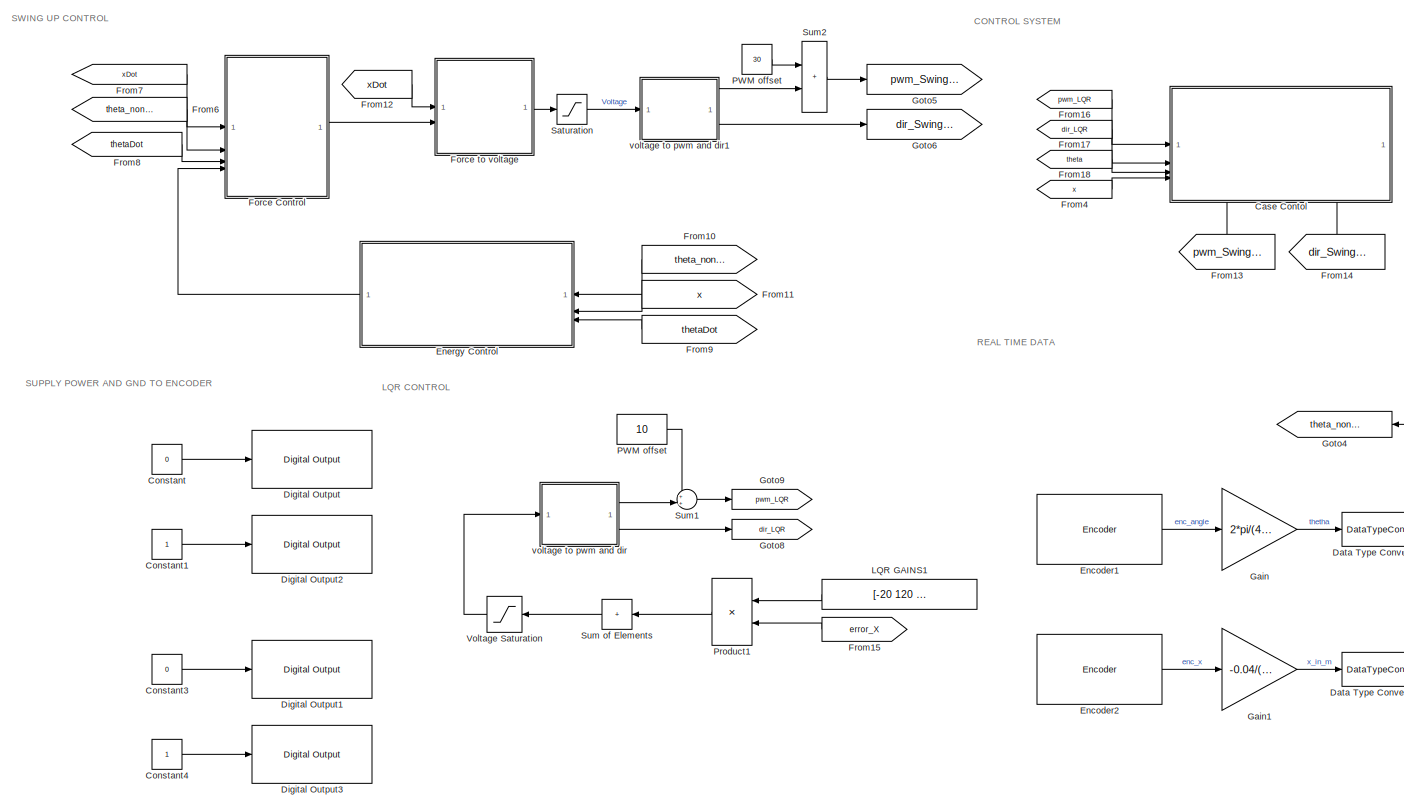
[diagram: root canvas - part 1/2, most of the canvas]
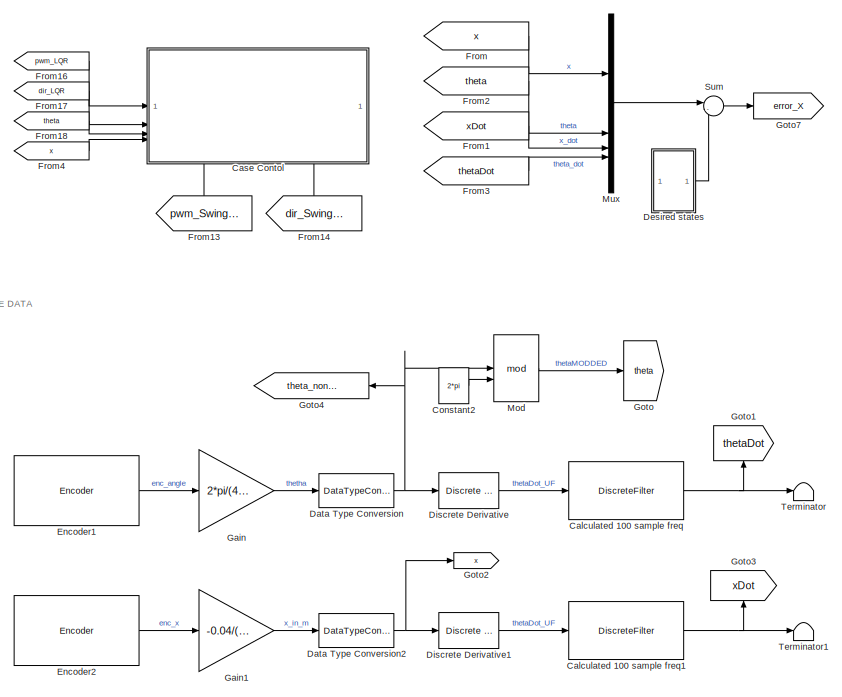
[diagram: root canvas - part 2/2, right side, full height]
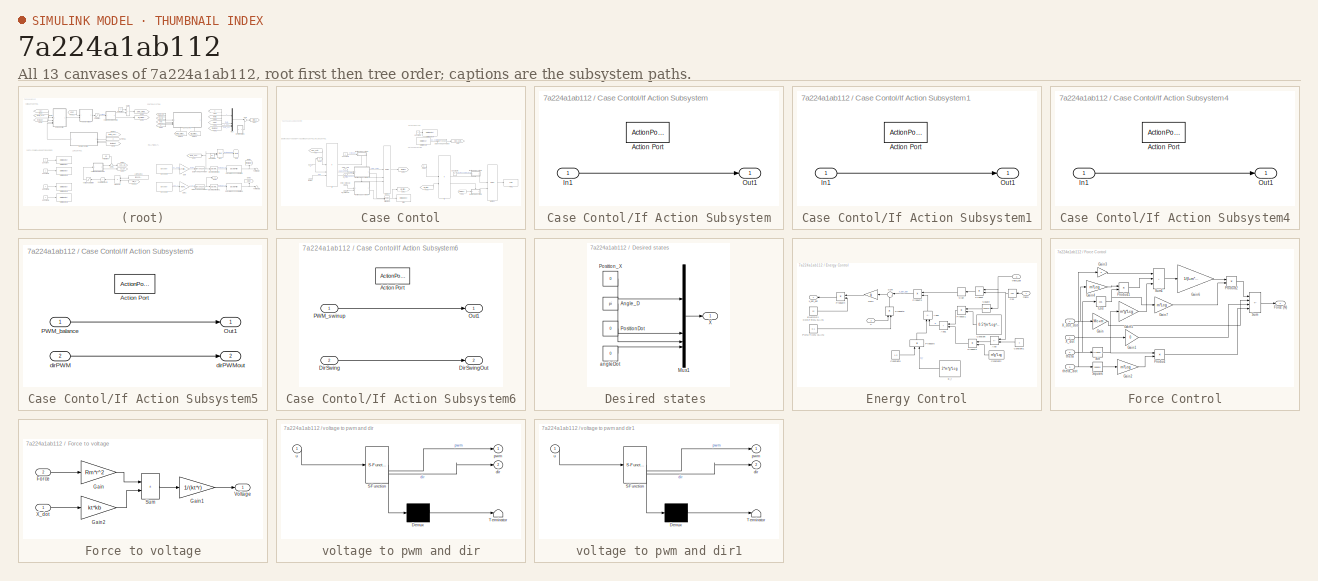
[diagram: thumbnail index - all 13 canvases of the model, root first then tree order]
MODEL slx_7a224a1ab112
KIND model
CONFIG AbsTol = auto
CONFIG EnableMultiTasking = on
CONFIG FixedStep = auto
CONFIG MaxStep = auto
CONFIG MinStep = auto
CONFIG RelTol = 1e-3
CONFIG SampleTimeConstraint = Unconstrained
CONFIG SolverName = ode45
CONFIG StartTime = 0.0
CONFIG StopTime = 10.0
WORKSPACE source: MATLAB code (in-file)
WORKSPACE Mc = 0.540 + 0.048  (= 0.588)
WORKSPACE l = 0.49
WORKSPACE Lcg = l/2  (= 0.245)
WORKSPACE m = 0.022
WORKSPACE g = 9.81
WORKSPACE Rm = 1.3
WORKSPACE kb = 0.02
WORKSPACE kt = 0.02
WORKSPACE r = 0.04/(2*pi)  (= 0.00636619772368)
WORKSPACE c = 5
WORKSPACE b = 0.00001  (= 1e-05)
WORKSPACE I = 0.00007  (= 7e-05)
WORKSPACE offset = 15
WORKSPACE highThetaTreshold = pi+ pi*offset/180  (= 3.40339204139)
WORKSPACE lowThetaTreshold = pi- pi*offset/180  (= 2.87979326579)
WORKSPACE xMAX = 0.25
WORKSPACE xMIN = -0.25
BLOCK [DiscreteFilter] Calculated 100 sample freq
  Denominator = [1 -0.9391]
  InputPortMap = u0
  Numerator = [0.03047 0.03047]
  SampleTime = 0.01
BLOCK [DiscreteFilter] Calculated 100 sample freq1
  Denominator = [1 -0.9391]
  InputPortMap = u0
  Numerator = [0.03047 0.03047]
  SampleTime = 0.01
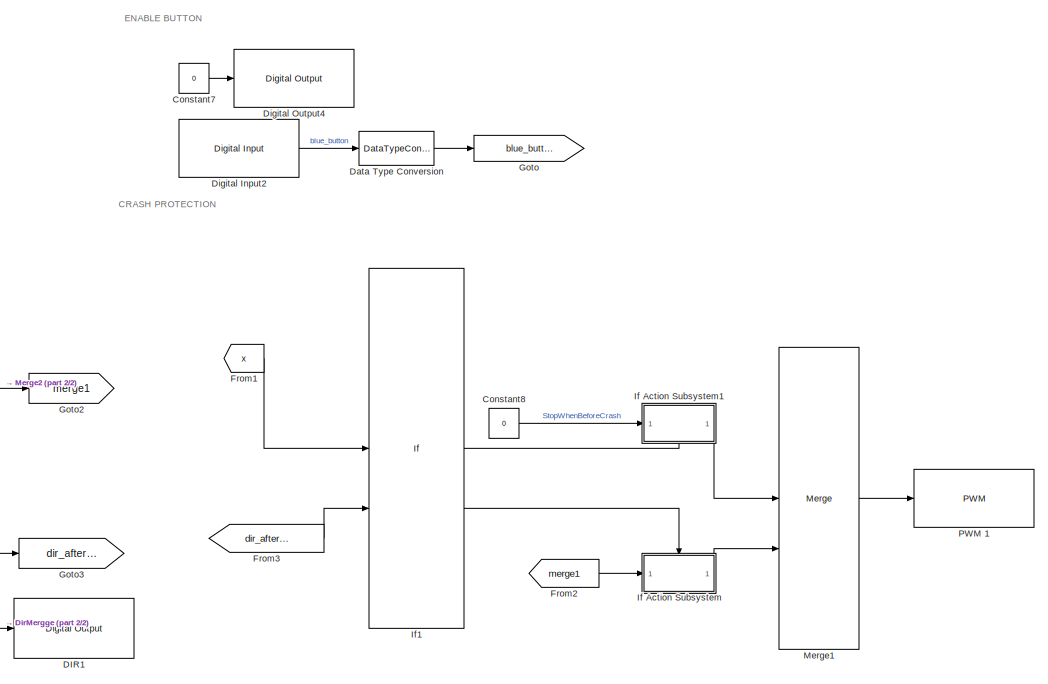
[diagram: Case Contol - part 1/2, right side, full height]
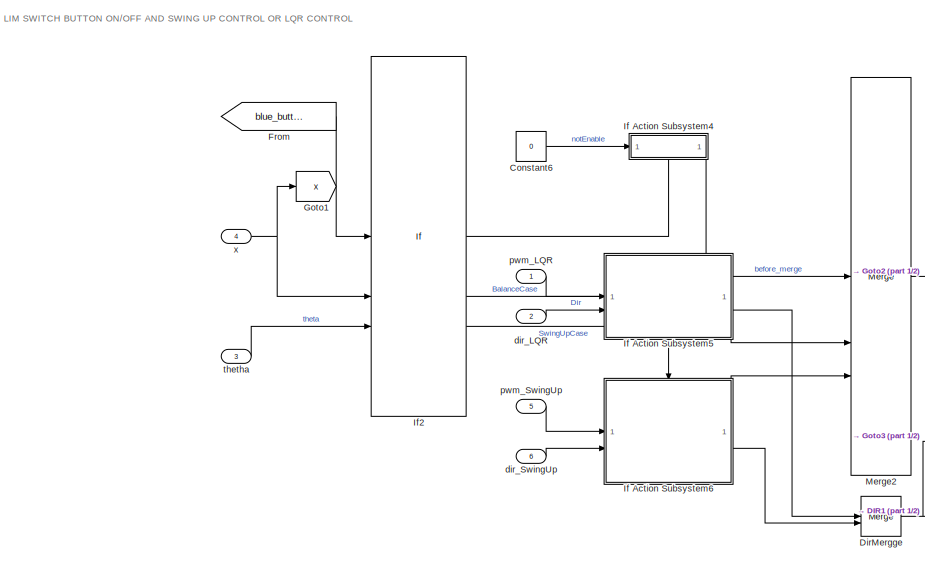
[diagram: Case Contol - part 2/2, left side, full height]
BLOCK [SubSystem] Case Contol
  PortSchema = {"entries":[{"content":{"sides":[{"content":{"connectorIds":["In1","In2","In3","In4"]},"type":"ConnectorPlacement.EquallySpacedRectSide","uuid":"b9c187f4-b904-4d2f-9cde-60dd328b1521"},{"content":{"connectorIds":[],"side":"RIGHT"},"type":"ConnectorPlacement.EquallySpacedRectSide","uuid":"bc2320ec-c90b-418d-8662-363a4a51a6b8"},{"content":{"connectorIds":[],"side":"TOP"},"type":"ConnectorPlacement.Eq...<+407ch>
BLOCK [Constant] Case Contol/Constant6
  Value = 0
BLOCK [Constant] Case Contol/Constant7
  Value = 0
BLOCK [Constant] Case Contol/Constant8
  Value = 0
BLOCK [Reference] Case Contol/DIR1  REF=arduinolib/Digital Output
  SourceBlock = arduinolib/Digital Output
  SourceType = Arduino Digital Output
BLOCK [DataTypeConversion] Case Contol/Data Type Conversion
  OutDataTypeStr = double
  RndMeth = Floor
  SaturateOnIntegerOverflow = off
BLOCK [Reference] Case Contol/Digital Input2  REF=arduinolib/Digital Input
  SourceBlock = arduinolib/Digital Input
  SourceType = Arduino Digital Input
BLOCK [Reference] Case Contol/Digital Output4  REF=arduinolib/Digital Output
  SourceBlock = arduinolib/Digital Output
  SourceType = Arduino Digital Output
BLOCK [Merge] Case Contol/DirMergge
BLOCK [From] Case Contol/From
  GotoTag = blue_button_sim
BLOCK [From] Case Contol/From1
  GotoTag = x
BLOCK [From] Case Contol/From2
  GotoTag = merge1
BLOCK [From] Case Contol/From3
  GotoTag = dir_after_pwm
BLOCK [Goto] Case Contol/Goto
  GotoTag = blue_button_sim
BLOCK [Goto] Case Contol/Goto1
  GotoTag = x
BLOCK [Goto] Case Contol/Goto2
  GotoTag = merge1
BLOCK [Goto] Case Contol/Goto3
  GotoTag = dir_after_pwm
BLOCK [SubSystem] Case Contol/If Action Subsystem
  TreatAsAtomicUnit = on
BLOCK [ActionPort] Case Contol/If Action Subsystem/Action Port
  ActionPortLabel = else
BLOCK [Inport] Case Contol/If Action Subsystem/In1
BLOCK [Outport] Case Contol/If Action Subsystem/Out1
BLOCK [SubSystem] Case Contol/If Action Subsystem1
  TreatAsAtomicUnit = on
BLOCK [ActionPort] Case Contol/If Action Subsystem1/Action Port
  ActionPortLabel = if(u1 > xMAX & u2 == 1 | u1 < xMIN & u2 == 0)
BLOCK [Inport] Case Contol/If Action Subsystem1/In1
BLOCK [Outport] Case Contol/If Action Subsystem1/Out1
BLOCK [SubSystem] Case Contol/If Action Subsystem4
  TreatAsAtomicUnit = on
BLOCK [ActionPort] Case Contol/If Action Subsystem4/Action Port
  ActionPortLabel = if(u1 == 0 )
BLOCK [Inport] Case Contol/If Action Subsystem4/In1
BLOCK [Outport] Case Contol/If Action Subsystem4/Out1
BLOCK [SubSystem] Case Contol/If Action Subsystem5
  TreatAsAtomicUnit = on
BLOCK [ActionPort] Case Contol/If Action Subsystem5/Action Port
  ActionPortLabel = elseif(u3 < highThetaTreshold & u3 > lowThetaTreshold  )
BLOCK [Outport] Case Contol/If Action Subsystem5/Out1
BLOCK [Inport] Case Contol/If Action Subsystem5/PWM_balance
BLOCK [Inport] Case Contol/If Action Subsystem5/dirPWM
  Port = 2
BLOCK [Outport] Case Contol/If Action Subsystem5/dirPWMout
  Port = 2
BLOCK [SubSystem] Case Contol/If Action Subsystem6
  TreatAsAtomicUnit = on
BLOCK [ActionPort] Case Contol/If Action Subsystem6/Action Port
  ActionPortLabel = elseif( u1 ~= 0  & u3 > highThetaTreshold | u3 < lowThetaTreshold)
BLOCK [Inport] Case Contol/If Action Subsystem6/DirSwing
  Port = 2
BLOCK [Outport] Case Contol/If Action Subsystem6/DirSwingOut
  Port = 2
BLOCK [Outport] Case Contol/If Action Subsystem6/Out1
BLOCK [Inport] Case Contol/If Action Subsystem6/PWM_swinup
BLOCK [If] Case Contol/If1
  IfExpression = u1 > xMAX & u2 == 1 | u1 < xMIN & u2 == 0
  NumInputs = 2
BLOCK [If] Case Contol/If2
  ElseIfExpressions = u3 < highThetaTreshold & u3 > lowThetaTreshold  , u1 ~= 0  & u3 > highThetaTreshold | u3 < lowThetaTreshold
  IfExpression = u1 == 0
  NumInputs = 3
  ShowElse = off
BLOCK [Merge] Case Contol/Merge1
BLOCK [Merge] Case Contol/Merge2
  Inputs = 3
BLOCK [Reference] Case Contol/PWM  1  REF=arduinolib/PWM
  SourceBlock = arduinolib/PWM
  SourceType = Arduino PWM
BLOCK [Inport] Case Contol/dir_LQR 
  Port = 2
BLOCK [Inport] Case Contol/dir_SwingUp
  Port = 6
BLOCK [Inport] Case Contol/pwm_LQR
BLOCK [Inport] Case Contol/pwm_SwingUp
  Port = 5
BLOCK [Inport] Case Contol/thetha
  Port = 3
BLOCK [Inport] Case Contol/x
  Port = 4
BLOCK [Constant] Constant
  Value = 0
BLOCK [Constant] Constant1
BLOCK [Constant] Constant2
  Value = 2*pi
BLOCK [Constant] Constant3
  Value = 0
BLOCK [Constant] Constant4
BLOCK [DataTypeConversion] Data Type Conversion
  OutDataTypeStr = double
  RndMeth = Floor
  SaturateOnIntegerOverflow = off
BLOCK [DataTypeConversion] Data Type Conversion2
  OutDataTypeStr = double
  RndMeth = Floor
  SaturateOnIntegerOverflow = off
BLOCK [SubSystem] Desired states 
BLOCK [Constant] Desired states /Angle_D
  Value = pi
BLOCK [Mux] Desired states /Mux1
  DisplayOption = bar
BLOCK [Constant] Desired states /PositionDot
  NameLocation = right
  Value = 0
BLOCK [Constant] Desired states /Position_X
  Value = 0
BLOCK [Outport] Desired states /X
  VectorParamsAs1DForOutWhenUnconnected = off
BLOCK [Constant] Desired states /angleDot
  Value = 0
BLOCK [Reference] Digital Output  REF=arduinolib/Digital Output
  SourceBlock = arduinolib/Digital Output
  SourceType = Arduino Digital Output
BLOCK [Reference] Digital Output1  REF=arduinolib/Digital Output
  SourceBlock = arduinolib/Digital Output
  SourceType = Arduino Digital Output
BLOCK [Reference] Digital Output2  REF=arduinolib/Digital Output
  SourceBlock = arduinolib/Digital Output
  SourceType = Arduino Digital Output
BLOCK [Reference] Digital Output3  REF=arduinolib/Digital Output
  SourceBlock = arduinolib/Digital Output
  SourceType = Arduino Digital Output
BLOCK [Reference] Discrete Derivative  REF=simulink/Quick Insert/Discrete/Discrete Derivative
  SourceBlock = simulink/Quick Insert/Discrete/Discrete Derivative
  SourceType = Discrete Derivative
BLOCK [Reference] Discrete Derivative1  REF=simulink/Quick Insert/Discrete/Discrete Derivative
  SourceBlock = simulink/Quick Insert/Discrete/Discrete Derivative
  SourceType = Discrete Derivative
BLOCK [Reference] Encoder1  REF=arduinosensorlib/Encoder
  SourceBlock = arduinosensorlib/Encoder
  SourceType = Arduino Rotary Encoder
BLOCK [Reference] Encoder2  REF=arduinosensorlib/Encoder
  SourceBlock = arduinosensorlib/Encoder
  SourceType = Arduino Rotary Encoder
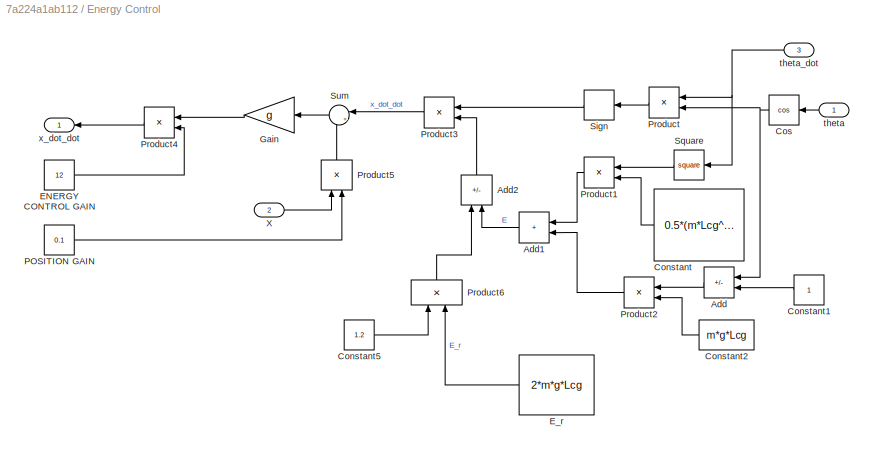
BLOCK [SubSystem] Energy Control
  NameLocation = top
BLOCK [Sum] Energy Control/Add
  IconShape = rectangular
  Inputs = -+
  NameLocation = top
BLOCK [Sum] Energy Control/Add1
  IconShape = rectangular
  NameLocation = top
BLOCK [Sum] Energy Control/Add2
  IconShape = rectangular
  Inputs = -+
  NameLocation = right
BLOCK [Constant] Energy Control/Constant
  NameLocation = top
  SampleTime = 0.01
  Value = 0.5*(m*Lcg^2+I)
BLOCK [Constant] Energy Control/Constant1
  NameLocation = top
  SampleTime = 0.01
BLOCK [Constant] Energy Control/Constant2
  NameLocation = top
  Value = m*g*Lcg
BLOCK [Constant] Energy Control/Constant5
  SampleTime = 0.01
  Value = 1.2
BLOCK [Trigonometry] Energy Control/Cos
  NameLocation = top
  Operator = cos
BLOCK [Constant] Energy Control/ENERGY CONTROL GAIN
  SampleTime = 0.01
  Value = 12
BLOCK [Constant] Energy Control/E_r
  NameLocation = top
  SampleTime = 0.01
  Value = 2*m*g*Lcg
BLOCK [Gain] Energy Control/Gain
  Gain = g
  NameLocation = top
BLOCK [Constant] Energy Control/POSITION GAIN
  SampleTime = 0.01
  Value = 0.1
BLOCK [Product] Energy Control/Product
  NameLocation = top
BLOCK [Product] Energy Control/Product1
  NameLocation = top
BLOCK [Product] Energy Control/Product2
  NameLocation = top
BLOCK [Product] Energy Control/Product3
  NameLocation = top
BLOCK [Product] Energy Control/Product4
  NameLocation = top
BLOCK [Product] Energy Control/Product5
  NameLocation = right
BLOCK [Product] Energy Control/Product6
  NameLocation = right
BLOCK [Signum] Energy Control/Sign
  NameLocation = top
BLOCK [Math] Energy Control/Square
  NameLocation = top
  Operator = square
BLOCK [Sum] Energy Control/Sum
  Inputs = |+-
  NameLocation = top
BLOCK [Inport] Energy Control/X
  Port = 2
BLOCK [Inport] Energy Control/theta
  NameLocation = top
BLOCK [Inport] Energy Control/theta_dot
  NameLocation = top
  Port = 3
BLOCK [Outport] Energy Control/x_dot_dot
BLOCK [SubSystem] Force Control
BLOCK [Trigonometry] Force Control/Cos
  Operator = cos
BLOCK [Outport] Force Control/Force (N)
  VectorParamsAs1DForOutWhenUnconnected = off
BLOCK [Gain] Force Control/Gain
  Gain = Mc+m
BLOCK [Gain] Force Control/Gain1
  Gain = 0
BLOCK [Gain] Force Control/Gain2
  Gain = m*Lcg
BLOCK [Gain] Force Control/Gain3
  Gain = b
BLOCK [Gain] Force Control/Gain4
  Gain = m*Lcg
BLOCK [Gain] Force Control/Gain5
  Gain = m*g*Lcg
BLOCK [Gain] Force Control/Gain6
  Gain = 1/(I+m*Lcg^2)
BLOCK [Gain] Force Control/Gain7
  Gain = m*Lcg
BLOCK [Product] Force Control/Product
BLOCK [Product] Force Control/Product1
BLOCK [Product] Force Control/Product2
BLOCK [Trigonometry] Force Control/Sin
BLOCK [Math] Force Control/Square
  Operator = square
BLOCK [Sum] Force Control/Sum
  IconShape = rectangular
  Inputs = -++-
BLOCK [Sum] Force Control/Sum1
  IconShape = rectangular
  Inputs = +++
BLOCK [Inport] Force Control/X_dot
BLOCK [Inport] Force Control/X_dot_dot
  NameLocation = top
  Port = 4
BLOCK [Inport] Force Control/theta
  Port = 2
BLOCK [Inport] Force Control/theta_dot
  Port = 3
BLOCK [SubSystem] Force to voltage
BLOCK [Inport] Force to voltage/Force
  Port = 2
BLOCK [Gain] Force to voltage/Gain
  Gain = Rm*r^2
BLOCK [Gain] Force to voltage/Gain1
  Gain = 1/(kt*r)
BLOCK [Gain] Force to voltage/Gain2
  Gain = kt*kb
BLOCK [Sum] Force to voltage/Sum
  IconShape = rectangular
BLOCK [Outport] Force to voltage/Voltage
BLOCK [Inport] Force to voltage/X_dot
BLOCK [From] From
  GotoTag = x
BLOCK [From] From1
  GotoTag = xDot
BLOCK [From] From10
  GotoTag = theta_nonMod
  NameLocation = top
BLOCK [From] From11
  GotoTag = x
  NameLocation = top
BLOCK [From] From12
  GotoTag = xDot
BLOCK [From] From13
  GotoTag = pwm_SwingUp
  NameLocation = right
BLOCK [From] From14
  GotoTag = dir_SwingUp
  NameLocation = right
BLOCK [From] From15
  GotoTag = error_X
  NameLocation = top
BLOCK [From] From16
  GotoTag = pwm_LQR
BLOCK [From] From17
  GotoTag = dir_LQR
BLOCK [From] From18
  GotoTag = theta
BLOCK [From] From2
  GotoTag = theta
BLOCK [From] From3
  GotoTag = thetaDot
BLOCK [From] From4
  GotoTag = x
BLOCK [From] From6
  GotoTag = theta_nonMod
BLOCK [From] From7
  GotoTag = xDot
BLOCK [From] From8
  GotoTag = thetaDot
BLOCK [From] From9
  GotoTag = thetaDot
  NameLocation = top
BLOCK [Gain] Gain
  Gain = 2*pi/(4000)
BLOCK [Gain] Gain1
  Gain = -0.04/(600*4)
BLOCK [Goto] Goto
  GotoTag = theta
BLOCK [Goto] Goto1
  GotoTag = thetaDot
  NameLocation = right
BLOCK [Goto] Goto2
  GotoTag = x
BLOCK [Goto] Goto3
  GotoTag = xDot
  NameLocation = right
BLOCK [Goto] Goto4
  GotoTag = theta_nonMod
  NameLocation = top
BLOCK [Goto] Goto5
  GotoTag = pwm_SwingUp
BLOCK [Goto] Goto6
  GotoTag = dir_SwingUp
BLOCK [Goto] Goto7
  GotoTag = error_X
BLOCK [Goto] Goto8
  GotoTag = dir_LQR
BLOCK [Goto] Goto9
  GotoTag = pwm_LQR
BLOCK [Constant] LQR GAINS1
  NameLocation = top
  Value = [-20   120  -20  5]
BLOCK [Math] Mod
  Operator = mod
  SignedPower = on
BLOCK [Mux] Mux
  DisplayOption = bar
BLOCK [Constant] PWM offset
  Value = 30
BLOCK [Constant] PWM offset 
  Value = 10
BLOCK [Product] Product1
  NameLocation = top
BLOCK [Saturate] Saturation
  LowerLimit = -3.2
  UpperLimit = 3.2
BLOCK [Sum] Sum
  Inputs = |-+
BLOCK [Sum] Sum of Elements
  IconShape = rectangular
  Inputs = +
  NameLocation = top
BLOCK [Sum] Sum1
  Inputs = ++|
BLOCK [Sum] Sum2
  IconShape = rectangular
BLOCK [Terminator] Terminator
BLOCK [Terminator] Terminator1
BLOCK [Saturate] Voltage Saturation
  LowerLimit = -6
  NameLocation = top
  UpperLimit = 6
BLOCK [SubSystem] voltage to pwm and dir
  ErrorFcn = Stateflow.Translate.translate
  LibrarySourceBlock = simulink/User-Defined\nFunctions/MATLAB Function
  PermitHierarchicalResolution = ExplicitOnly
  SFBlockType = MATLAB Function
  TreatAsAtomicUnit = on
BLOCK [Demux] voltage to pwm and dir/ Demux 
  Outputs = 1
BLOCK [S-Function] voltage to pwm and dir/ SFunction 
  EnableBusSupport = on
  FunctionName = sf_sfun
  PortCounts = [1 3]
  SFcnIsStateOwnerBlock = off
  SFunctionDeploymentMode = off
  Tag = Stateflow S-Function 1
BLOCK [Terminator] voltage to pwm and dir/ Terminator 
BLOCK [Outport] voltage to pwm and dir/dir
  Port = 2
BLOCK [Outport] voltage to pwm and dir/pwm
BLOCK [Inport] voltage to pwm and dir/u
BLOCK [SubSystem] voltage to pwm and dir1
  ErrorFcn = Stateflow.Translate.translate
  LibrarySourceBlock = simulink/User-Defined\nFunctions/MATLAB Function
  PermitHierarchicalResolution = ExplicitOnly
  SFBlockType = MATLAB Function
  TreatAsAtomicUnit = on
BLOCK [Demux] voltage to pwm and dir1/ Demux 
  Outputs = 1
BLOCK [S-Function] voltage to pwm and dir1/ SFunction 
  EnableBusSupport = on
  FunctionName = sf_sfun
  PortCounts = [1 3]
  SFcnIsStateOwnerBlock = off
  SFunctionDeploymentMode = off
  Tag = Stateflow S-Function 2
BLOCK [Terminator] voltage to pwm and dir1/ Terminator 
BLOCK [Outport] voltage to pwm and dir1/dir
  Port = 2
BLOCK [Outport] voltage to pwm and dir1/pwm
BLOCK [Inport] voltage to pwm and dir1/u
ANNOTATION (root): CONTROL SYSTEM
ANNOTATION (root): LQR CONTROL
ANNOTATION (root): REAL TIME DATA
ANNOTATION (root): SUPPLY POWER AND GND TO ENCODER
ANNOTATION (root): SWING UP CONTROL
ANNOTATION Case Contol: CRASH PROTECTION
ANNOTATION Case Contol: ENABLE BUTTON
ANNOTATION Case Contol: LIM SWITCH BUTTON ON/OFF AND SWING UP CONTROL OR LQR CONTROL
NET Calculated 100 sample freq1:1 -> Goto3:1, Terminator1:1
NET Calculated 100 sample freq:1 -> Goto1:1, Terminator:1
LINE Case Contol/Constant6:1 -> Case Contol/If Action Subsystem4:1
LINE Case Contol/Constant7:1 -> Case Contol/Digital Output4:1
LINE Case Contol/Constant8:1 -> Case Contol/If Action Subsystem1:1
LINE Case Contol/Data Type Conversion:1 -> Case Contol/Goto:1
LINE Case Contol/Digital Input2:1 -> Case Contol/Data Type Conversion:1
NET Case Contol/DirMergge:1 -> Case Contol/DIR1:1, Case Contol/Goto3:1
LINE Case Contol/From1:1 -> Case Contol/If1:1
LINE Case Contol/From2:1 -> Case Contol/If Action Subsystem:1
LINE Case Contol/From3:1 -> Case Contol/If1:2
LINE Case Contol/From:1 -> Case Contol/If2:1
LINE Case Contol/If Action Subsystem/In1:1 -> Case Contol/If Action Subsystem/Out1:1
LINE Case Contol/If Action Subsystem1/In1:1 -> Case Contol/If Action Subsystem1/Out1:1
LINE Case Contol/If Action Subsystem1:1 -> Case Contol/Merge1:1
LINE Case Contol/If Action Subsystem4/In1:1 -> Case Contol/If Action Subsystem4/Out1:1
LINE Case Contol/If Action Subsystem4:1 -> Case Contol/Merge2:1
LINE Case Contol/If Action Subsystem5/PWM_balance:1 -> Case Contol/If Action Subsystem5/Out1:1
LINE Case Contol/If Action Subsystem5/dirPWM:1 -> Case Contol/If Action Subsystem5/dirPWMout:1
LINE Case Contol/If Action Subsystem5:1 -> Case Contol/Merge2:2
LINE Case Contol/If Action Subsystem5:2 -> Case Contol/DirMergge:1
LINE Case Contol/If Action Subsystem6/DirSwing:1 -> Case Contol/If Action Subsystem6/DirSwingOut:1
LINE Case Contol/If Action Subsystem6/PWM_swinup:1 -> Case Contol/If Action Subsystem6/Out1:1
LINE Case Contol/If Action Subsystem6:1 -> Case Contol/Merge2:3
LINE Case Contol/If Action Subsystem6:2 -> Case Contol/DirMergge:2
LINE Case Contol/If Action Subsystem:1 -> Case Contol/Merge1:2
LINE Case Contol/If1:1 -> Case Contol/If Action Subsystem1:ifaction
LINE Case Contol/If1:2 -> Case Contol/If Action Subsystem:ifaction
LINE Case Contol/If2:1 -> Case Contol/If Action Subsystem4:ifaction
LINE Case Contol/If2:2 -> Case Contol/If Action Subsystem5:ifaction
LINE Case Contol/If2:3 -> Case Contol/If Action Subsystem6:ifaction
LINE Case Contol/Merge1:1 -> Case Contol/PWM  1:1
LINE Case Contol/Merge2:1 -> Case Contol/Goto2:1
LINE Case Contol/dir_LQR :1 -> Case Contol/If Action Subsystem5:2
LINE Case Contol/dir_SwingUp:1 -> Case Contol/If Action Subsystem6:2
LINE Case Contol/pwm_LQR:1 -> Case Contol/If Action Subsystem5:1
LINE Case Contol/pwm_SwingUp:1 -> Case Contol/If Action Subsystem6:1
LINE Case Contol/thetha:1 -> Case Contol/If2:3
NET Case Contol/x:1 -> Case Contol/Goto1:1, Case Contol/If2:2
LINE Constant1:1 -> Digital Output2:1
LINE Constant2:1 -> Mod:2
LINE Constant3:1 -> Digital Output1:1
LINE Constant4:1 -> Digital Output3:1
LINE Constant:1 -> Digital Output:1
NET Data Type Conversion2:1 -> Discrete Derivative1:1, Goto2:1
NET Data Type Conversion:1 -> Discrete Derivative:1, Goto4:1, Mod:1
LINE Desired states /Angle_D:1 -> Desired states /Mux1:2
LINE Desired states /Mux1:1 -> Desired states /X:1
LINE Desired states /PositionDot:1 -> Desired states /Mux1:3
LINE Desired states /Position_X:1 -> Desired states /Mux1:1
LINE Desired states /angleDot:1 -> Desired states /Mux1:4
LINE Desired states :1 -> Sum:2
LINE Discrete Derivative1:1 -> Calculated 100 sample freq1:1
LINE Discrete Derivative:1 -> Calculated 100 sample freq:1
LINE Encoder1:1 -> Gain:1
LINE Encoder2:1 -> Gain1:1
LINE Energy Control/Add1:1 -> Energy Control/Add2:2
LINE Energy Control/Add2:1 -> Energy Control/Product3:2
LINE Energy Control/Add:1 -> Energy Control/Product2:1
LINE Energy Control/Constant1:1 -> Energy Control/Add:2
LINE Energy Control/Constant2:1 -> Energy Control/Product2:2
LINE Energy Control/Constant5:1 -> Energy Control/Product6:1
LINE Energy Control/Constant:1 -> Energy Control/Product1:2
NET Energy Control/Cos:1 -> Energy Control/Add:1, Energy Control/Product:2
LINE Energy Control/ENERGY CONTROL GAIN:1 -> Energy Control/Product4:2
LINE Energy Control/E_r:1 -> Energy Control/Product6:2
LINE Energy Control/Gain:1 -> Energy Control/Product4:1
LINE Energy Control/POSITION GAIN:1 -> Energy Control/Product5:2
LINE Energy Control/Product1:1 -> Energy Control/Add1:1
LINE Energy Control/Product2:1 -> Energy Control/Add1:2
LINE Energy Control/Product3:1 -> Energy Control/Sum:1
LINE Energy Control/Product4:1 -> Energy Control/x_dot_dot:1
LINE Energy Control/Product5:1 -> Energy Control/Sum:2
LINE Energy Control/Product6:1 -> Energy Control/Add2:1
LINE Energy Control/Product:1 -> Energy Control/Sign:1
LINE Energy Control/Sign:1 -> Energy Control/Product3:1
LINE Energy Control/Square:1 -> Energy Control/Product1:1
LINE Energy Control/Sum:1 -> Energy Control/Gain:1
LINE Energy Control/X:1 -> Energy Control/Product5:1
LINE Energy Control/theta:1 -> Energy Control/Cos:1
NET Energy Control/theta_dot:1 -> Energy Control/Product:1, Energy Control/Square:1
LINE Energy Control:1 -> Force Control:4
NET Force Control/Cos:1 -> Force Control/Gain7:1, Force Control/Product1:2
LINE Force Control/Gain1:1 -> Force Control/Sum:3
LINE Force Control/Gain2:1 -> Force Control/Product:2
LINE Force Control/Gain3:1 -> Force Control/Sum1:1
LINE Force Control/Gain4:1 -> Force Control/Product1:1
LINE Force Control/Gain5:1 -> Force Control/Sum1:3
LINE Force Control/Gain6:1 -> Force Control/Product2:1
LINE Force Control/Gain7:1 -> Force Control/Product2:2
LINE Force Control/Gain:1 -> Force Control/Sum:2
LINE Force Control/Product1:1 -> Force Control/Sum1:2
LINE Force Control/Product2:1 -> Force Control/Sum:1
LINE Force Control/Product:1 -> Force Control/Sum:4
NET Force Control/Sin:1 -> Force Control/Gain5:1, Force Control/Product:1
LINE Force Control/Square:1 -> Force Control/Gain2:1
LINE Force Control/Sum1:1 -> Force Control/Gain6:1
LINE Force Control/Sum:1 -> Force Control/Force (N):1
LINE Force Control/X_dot:1 -> Force Control/Gain1:1
NET Force Control/X_dot_dot:1 -> Force Control/Gain4:1, Force Control/Gain:1
NET Force Control/theta:1 -> Force Control/Cos:1, Force Control/Sin:1
NET Force Control/theta_dot:1 -> Force Control/Gain3:1, Force Control/Square:1
LINE Force Control:1 -> Force to voltage:2
LINE Force to voltage/Force:1 -> Force to voltage/Gain:1
LINE Force to voltage/Gain1:1 -> Force to voltage/Voltage:1
LINE Force to voltage/Gain2:1 -> Force to voltage/Sum:2
LINE Force to voltage/Gain:1 -> Force to voltage/Sum:1
LINE Force to voltage/Sum:1 -> Force to voltage/Gain1:1
LINE Force to voltage/X_dot:1 -> Force to voltage/Gain2:1
LINE Force to voltage:1 -> Saturation:1
LINE From10:1 -> Energy Control:1
LINE From11:1 -> Energy Control:2
LINE From12:1 -> Force to voltage:1
LINE From13:1 -> Case Contol:5
LINE From14:1 -> Case Contol:6
LINE From15:1 -> Product1:2
LINE From16:1 -> Case Contol:1
LINE From17:1 -> Case Contol:2
LINE From18:1 -> Case Contol:3
LINE From1:1 -> Mux:3
LINE From2:1 -> Mux:2
LINE From3:1 -> Mux:4
LINE From4:1 -> Case Contol:4
LINE From6:1 -> Force Control:2
LINE From7:1 -> Force Control:1
LINE From8:1 -> Force Control:3
LINE From9:1 -> Energy Control:3
LINE From:1 -> Mux:1
LINE Gain1:1 -> Data Type Conversion2:1
LINE Gain:1 -> Data Type Conversion:1
LINE LQR GAINS1:1 -> Product1:1
LINE Mod:1 -> Goto:1
LINE Mux:1 -> Sum:1
LINE PWM offset :1 -> Sum1:1
LINE PWM offset:1 -> Sum2:1
LINE Product1:1 -> Sum of Elements:1
LINE Saturation:1 -> voltage to pwm and dir1:1
LINE Sum of Elements:1 -> Voltage Saturation:1
LINE Sum1:1 -> Goto9:1
LINE Sum2:1 -> Goto5:1
LINE Sum:1 -> Goto7:1
LINE Voltage Saturation:1 -> voltage to pwm and dir:1
LINE voltage to pwm and dir1:1 -> Sum2:2
LINE voltage to pwm and dir1:2 -> Goto6:1
LINE voltage to pwm and dir:1 -> Sum1:2
LINE voltage to pwm and dir:2 -> Goto8:1
note: NET lines group one-source signal fan-out (src -> all destinations, sorted); 1:1 wires keep LINE
CHART voltage to pwm and dir1 states=1 transitions=1
  STATE_LABEL 'eML_blk_kernel()'
  STATE_LABEL 'SCRIPT:\nfunction [pwm, dir]  = fcn(u)\n\nsignx = sign(u);\npwm = abs(u)/12*255; %Converts from voltage to PWM\n\nif(signx<0)\n    dir = 0;\nelse\n    dir = 1;\nend\n\nend\n\n\n\n\n'
CHART voltage to pwm and dir states=1 transitions=1
  STATE_LABEL 'eML_blk_kernel()'
  STATE_LABEL 'SCRIPT:\nfunction [pwm, dir]  = fcn(u)\n\nsignx = sign(u);\npwm = abs(u)/12*255; %Converts from voltage to PWM\n\nif(signx<0)\n    dir = 0;\nelse\n    dir = 1;\nend\n\nend\n\n\n\n\n'
CHART  states=0 transitions=0
CHART  states=0 transitions=0
